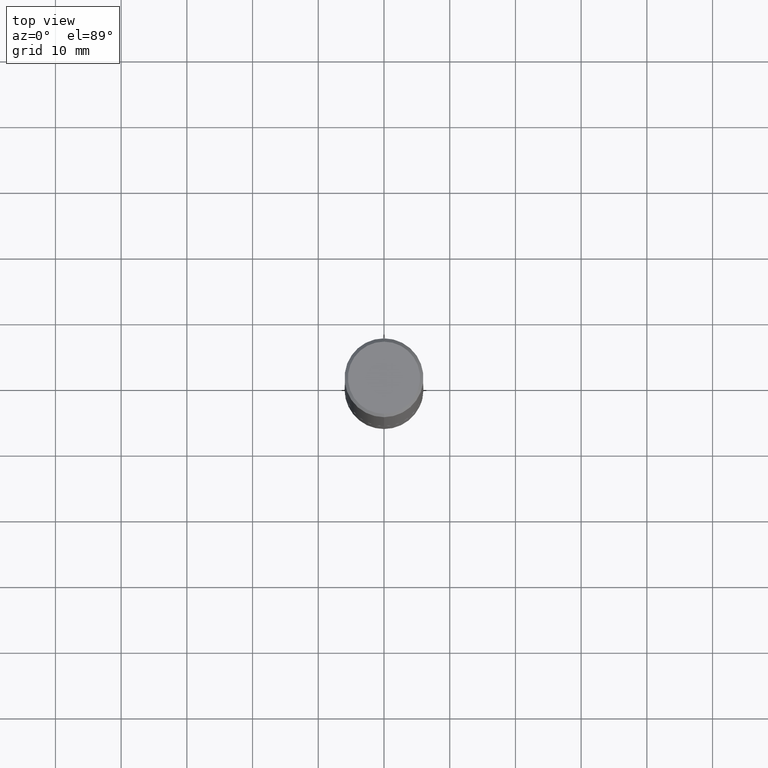
[diagram: clean part render]
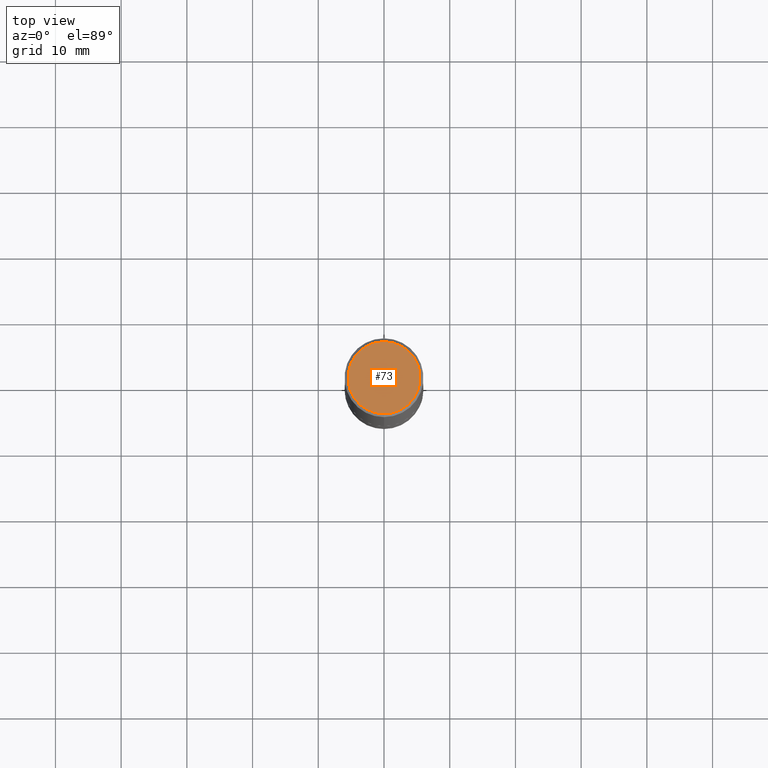
[diagram: same view with one face highlighted and labeled with its STEP entity id]
A machine part, top view. The second image highlights one B-rep face of the part: STEP entity #73.
In plain terms, the highlighted planar face has unit normal (0, -0, -1).
Its self-contained STEP definition (entity closure, byte-faithful):
#2 = CARTESIAN_POINT ( 'NONE',  ( -5.110810708303771248E-45, 7.292456936536269045E-31, 2.089277500898832412E-16 ) ) ;
#9 = EDGE_LOOP ( 'NONE', ( #292, #170 ) ) ;
#11 = CARTESIAN_POINT ( 'NONE',  ( 1.509716530915768746E-15, 0.2161999999999997257, -6.501650284879086356E-16 ) ) ;
#40 = VERTEX_POINT ( 'NONE', #391 ) ;
#54 = DIRECTION ( 'NONE',  ( -2.446209613660721864E-29, 3.490420460373964582E-15, 1.000000000000000000 ) ) ;
#73 = ADVANCED_FACE ( 'NONE', ( #293 ), #207, .F. ) ;
#89 = DIRECTION ( 'NONE',  ( -6.982962677686265922E-15, -1.000000000000000000, 3.490420460373964582E-15 ) ) ;
#91 = DIRECTION ( 'NONE',  ( -6.982962677686265922E-15, -1.000000000000000000, 3.490420460373964582E-15 ) ) ;
#128 = DIRECTION ( 'NONE',  ( -2.446209613660721864E-29, 3.490420460373964582E-15, 1.000000000000000000 ) ) ;
#139 = CIRCLE ( 'NONE', #173, 0.2161999999999997257 ) ;
#162 = AXIS2_PLACEMENT_3D ( 'NONE', #11, #202, #347 ) ;
#169 = AXIS2_PLACEMENT_3D ( 'NONE', #382, #54, #89 ) ;
#170 = ORIENTED_EDGE ( 'NONE', *, *, #304, .T. ) ;
#173 = AXIS2_PLACEMENT_3D ( 'NONE', #2, #128, #91 ) ;
#202 = DIRECTION ( 'NONE',  ( 2.446209613660721584E-29, -3.490420460373964582E-15, -1.000000000000000000 ) ) ;
#207 = PLANE ( 'NONE',  #162 ) ;
#266 = CIRCLE ( 'NONE', #169, 0.2161999999999997257 ) ;
#278 = CARTESIAN_POINT ( 'NONE',  ( 1.579546157692632438E-15, 0.2161999999999997257, -5.457011534429669164E-16 ) ) ;
#292 = ORIENTED_EDGE ( 'NONE', *, *, #388, .T. ) ;
#293 = FACE_OUTER_BOUND ( 'NONE', #9, .T. ) ;
#304 = EDGE_CURVE ( 'NONE', #40, #307, #266, .T. ) ;
#307 = VERTEX_POINT ( 'NONE', #278 ) ;
#347 = DIRECTION ( 'NONE',  ( 6.982962677686265922E-15, 1.000000000000000000, -3.490420460373964582E-15 ) ) ;
#382 = CARTESIAN_POINT ( 'NONE',  ( -5.110810708303771248E-45, 7.292456936536269045E-31, 2.089277500898832412E-16 ) ) ;
#388 = EDGE_CURVE ( 'NONE', #307, #40, #139, .T. ) ;
#391 = CARTESIAN_POINT ( 'NONE',  ( -1.551844647095918761E-15, -0.2161999999999997257, 9.635566536227334974E-16 ) ) ;